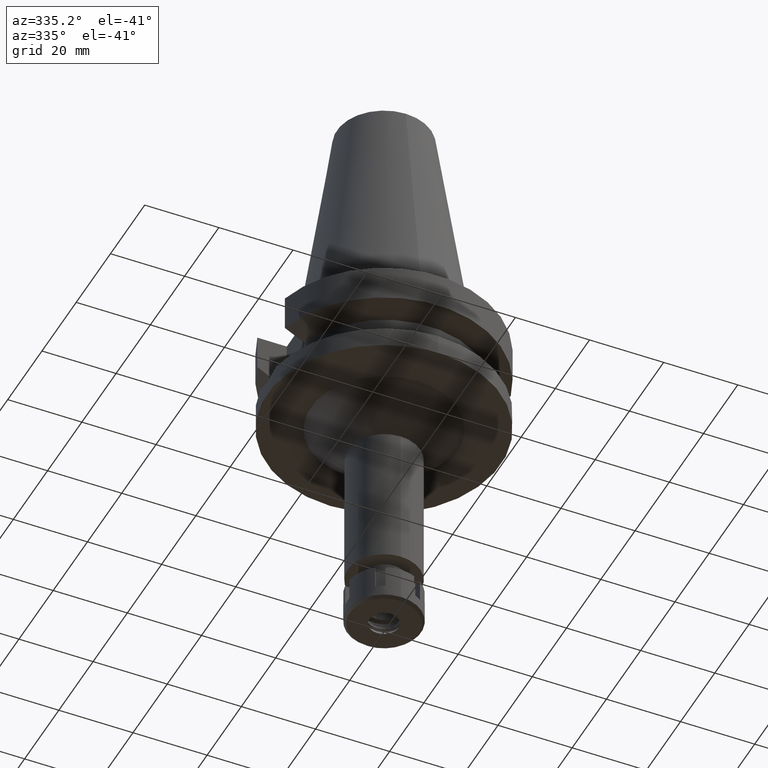
[diagram: clean part render]
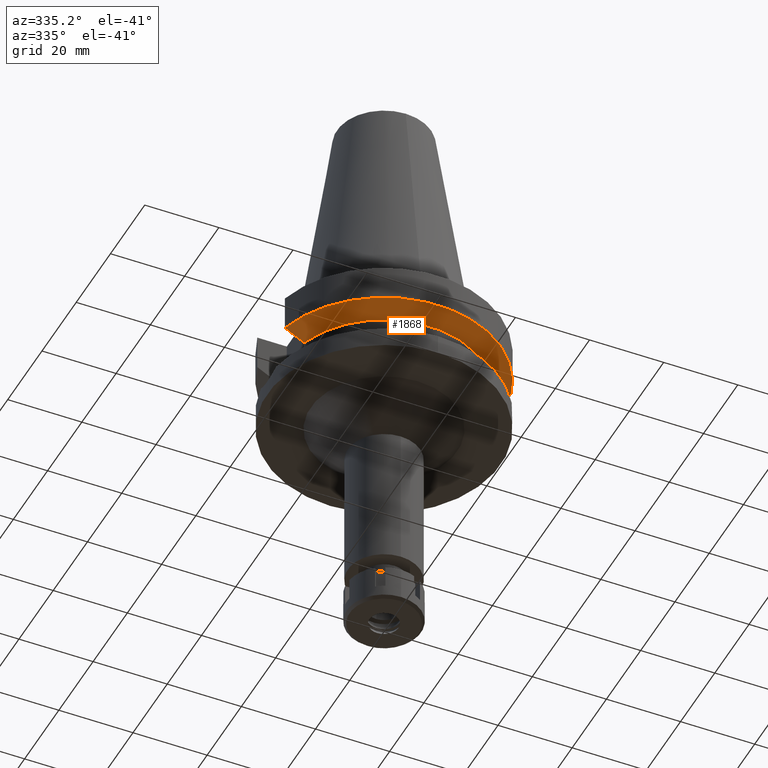
[diagram: same view with one face highlighted and labeled with its STEP entity id]
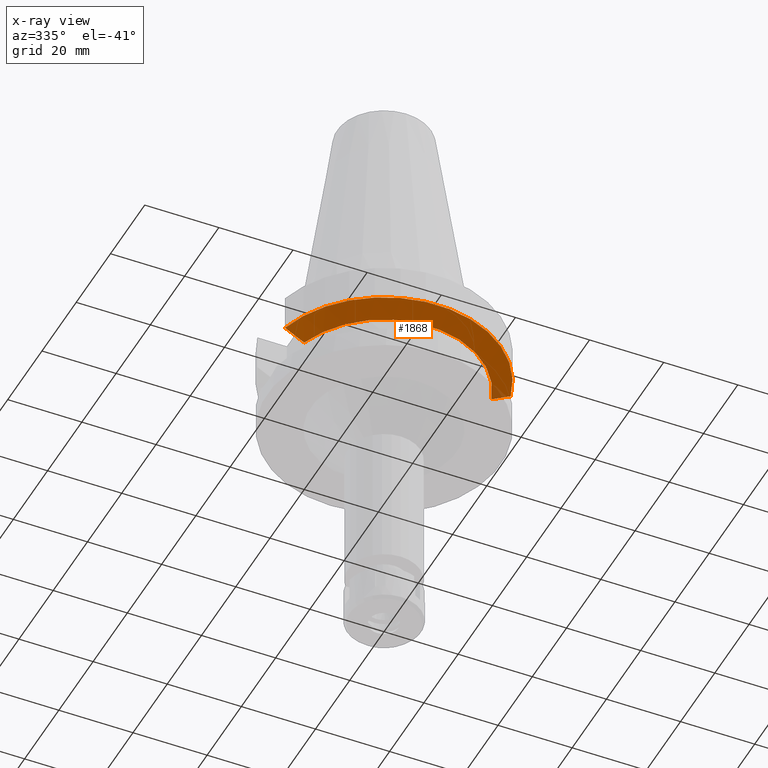
[diagram: x-ray of the same camera — body ghosted, the highlighted face saturated]
A machine part, auxiliary view. The second image highlights one B-rep face of the part: STEP entity #1868.
The next image is the same camera in x-ray: the body ghosted, the highlighted face saturated — about 2% of this face is hidden behind the body in this view.
In plain terms, the highlighted conical surface has half-angle 60 deg.
Its self-contained STEP definition (entity closure, byte-faithful):
#72 = CARTESIAN_POINT ( 'NONE',  ( -26.83754612978954768, -8.049990816363326473, -13.57774889857640765 ) ) ;
#90 = ORIENTED_EDGE ( 'NONE', *, *, #2264, .F. ) ;
#97 = CARTESIAN_POINT ( 'NONE',  ( 25.24772266958000344, -8.050000000000000711, -14.45225699861000024 ) ) ;
#372 = CARTESIAN_POINT ( 'NONE',  ( -30.45402291385000026, -8.049999277172000589, -11.56551216302999840 ) ) ;
#407 = EDGE_CURVE ( 'NONE', #2677, #3391, #877, .T. ) ;
#417 = DIRECTION ( 'NONE',  ( 0.0000000000000000000, 0.0000000000000000000, -1.000000000000000000 ) ) ;
#624 = CARTESIAN_POINT ( 'NONE',  ( 0.0000000000000000000, 1.065333950388000029E-14, -11.56550565266999975 ) ) ;
#632 = CIRCLE ( 'NONE', #2517, 31.50000000000000000 ) ;
#732 = CARTESIAN_POINT ( 'NONE',  ( 28.57294943150395738, -8.050008286143603087, -12.61547995013727430 ) ) ;
#744 = VERTEX_POINT ( 'NONE', #97 ) ;
#860 = CONICAL_SURFACE ( 'NONE', #2514, 29.00000000000000000, 1.047197551196400456 ) ;
#877 = B_SPLINE_CURVE_WITH_KNOTS ( 'NONE', 3,
 ( #372, #2260, #72, #1417 ),
 .UNSPECIFIED., .F., .F.,
 ( 4, 4 ),
 ( 0.0000000000000000000, 1.000000000000000000 ),
 .UNSPECIFIED. ) ;
#895 = CARTESIAN_POINT ( 'NONE',  ( -30.45402291385000026, -8.049999277172000589, -11.56551216302999840 ) ) ;
#1009 = EDGE_LOOP ( 'NONE', ( #1706, #1388, #3366, #90 ) ) ;
#1014 = CARTESIAN_POINT ( 'NONE',  ( 30.45402272279000044, -8.049999999999000622, -11.56550565266999975 ) ) ;
#1258 = EDGE_CURVE ( 'NONE', #744, #3391, #3005, .T. ) ;
#1388 = ORIENTED_EDGE ( 'NONE', *, *, #1258, .F. ) ;
#1417 = CARTESIAN_POINT ( 'NONE',  ( -25.24772413202000010, -8.049995413259001253, -14.45229204729999850 ) ) ;
#1706 = ORIENTED_EDGE ( 'NONE', *, *, #407, .T. ) ;
#1755 = DIRECTION ( 'NONE',  ( 0.0000000000000000000, 0.0000000000000000000, 1.000000000000000000 ) ) ;
#1819 = CARTESIAN_POINT ( 'NONE',  ( 0.0000000000000000000, 1.065333950388000029E-14, -14.45225699861000024 ) ) ;
#1850 = CARTESIAN_POINT ( 'NONE',  ( 25.24772266958000344, -8.050000000000000711, -14.45225699861000024 ) ) ;
#1868 = ADVANCED_FACE ( 'NONE', ( #2703 ), #860, .T. ) ;
#1887 = DIRECTION ( 'NONE',  ( 0.0000000000000000000, 0.0000000000000000000, 1.000000000000000000 ) ) ;
#1888 = CARTESIAN_POINT ( 'NONE',  ( -25.24772413202000010, -8.049995413259001253, -14.45229204729999850 ) ) ;
#1920 = DIRECTION ( 'NONE',  ( 0.0000000000000000000, 1.000000000000000000, 0.0000000000000000000 ) ) ;
#2260 = CARTESIAN_POINT ( 'NONE',  ( -28.57292326145731209, -8.049998555283025325, -12.61549607173394527 ) ) ;
#2264 = EDGE_CURVE ( 'NONE', #2677, #3123, #632, .T. ) ;
#2514 = AXIS2_PLACEMENT_3D ( 'NONE', #2723, #1887, #1920 ) ;
#2517 = AXIS2_PLACEMENT_3D ( 'NONE', #624, #1755, #2604 ) ;
#2604 = DIRECTION ( 'NONE',  ( 0.0000000000000000000, -1.000000000000000000, 0.0000000000000000000 ) ) ;
#2677 = VERTEX_POINT ( 'NONE', #895 ) ;
#2703 = FACE_OUTER_BOUND ( 'NONE', #1009, .T. ) ;
#2723 = CARTESIAN_POINT ( 'NONE',  ( 0.0000000000000000000, 1.065333950388000029E-14, -13.00888132564000088 ) ) ;
#2832 = B_SPLINE_CURVE_WITH_KNOTS ( 'NONE', 3,
 ( #1850, #3609, #732, #1014 ),
 .UNSPECIFIED., .F., .F.,
 ( 4, 4 ),
 ( 0.0000000000000000000, 1.000000000000000000 ),
 .UNSPECIFIED. ) ;
#2962 = DIRECTION ( 'NONE',  ( 0.9527442516822307583, -0.3037735849057093818, 0.0000000000000000000 ) ) ;
#3005 = CIRCLE ( 'NONE', #3241, 26.50000000000000711 ) ;
#3123 = VERTEX_POINT ( 'NONE', #3469 ) ;
#3241 = AXIS2_PLACEMENT_3D ( 'NONE', #1819, #417, #2962 ) ;
#3338 = EDGE_CURVE ( 'NONE', #744, #3123, #2832, .T. ) ;
#3366 = ORIENTED_EDGE ( 'NONE', *, *, #3338, .T. ) ;
#3391 = VERTEX_POINT ( 'NONE', #1888 ) ;
#3469 = CARTESIAN_POINT ( 'NONE',  ( 30.45402272279000044, -8.049999999999000622, -11.56550565266999975 ) ) ;
#3609 = CARTESIAN_POINT ( 'NONE',  ( 26.83757721543497610, -8.050003171438811833, -13.57772970065347984 ) ) ;